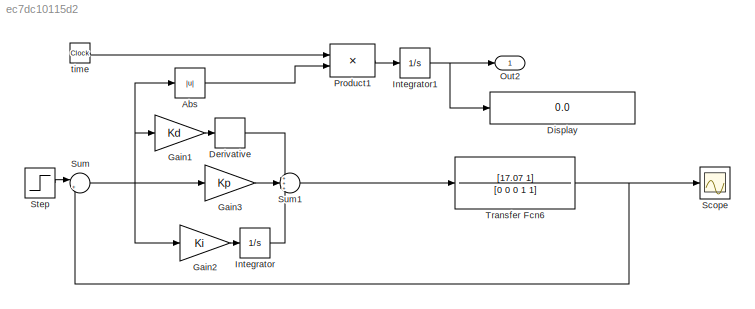
MODEL slx_ec7dc10115d2
KIND model
CONFIG AbsTol = auto
CONFIG EnableMultiTasking = on
CONFIG FixedStep = auto
CONFIG MaxStep = auto
CONFIG MinStep = auto
CONFIG RelTol = 1e-3
CONFIG SampleTimeConstraint = Unconstrained
CONFIG Solver = VariableStepAuto
CONFIG SolverName = VariableStepAuto
CONFIG StartTime = 0.0
CONFIG StopTime = 10.0
BLOCK [Abs] Abs
  ZeroCross = off
BLOCK [Derivative] Derivative
BLOCK [Display] Display
  Decimation = 1
  Format = long
  Ports = [1]
BLOCK [Gain] Gain1
  Gain = Kd
  OutDataTypeStr = Inherit: Inherit via internal rule
  ParamDataTypeStr = Inherit: Inherit via internal rule
  SaturateOnIntegerOverflow = off
BLOCK [Gain] Gain2
  Gain = Ki
  OutDataTypeStr = Inherit: Inherit via internal rule
  ParamDataTypeStr = Inherit: Inherit via internal rule
  SaturateOnIntegerOverflow = off
BLOCK [Gain] Gain3
  Gain = Kp
  OutDataTypeStr = Inherit: Inherit via internal rule
  ParamDataTypeStr = Inherit: Inherit via internal rule
  SaturateOnIntegerOverflow = off
BLOCK [Integrator] Integrator
  Ports = [1, 1]
BLOCK [Integrator] Integrator1
  Ports = [1, 1]
BLOCK [Outport] Out2
  IconDisplay = Port number
BLOCK [Product] Product1
  InputSameDT = off
  Ports = [2, 1]
  RndMeth = Floor
BLOCK [Scope] Scope
  Floating = off
  NumInputPorts = 1
  Ports = [1]
  ScopeSpecificationString = Simulink.scopes.TimeScopeBlockCfg('CurrentConfiguration', extmgr.ConfigurationSet(extmgr.Configuration('Core','General UI',true),extmgr.Configuration('Core','Source UI',true),extmgr.Configuration('Sources','WiredSimulink',true),extmgr.Configuration('Visuals','Time Domain',true,'SerializedDisplays',{struct('MinYLimReal','0.01081','MaxYLimReal','1.01529','YLabelReal','','MinYLimMag','0.01081','MaxYL...<+1364ch>
BLOCK [Step] Step
  SampleTime = 0
  Time = 0
BLOCK [Sum] Sum
  IconShape = round
  InputSameDT = off
  Inputs = |+-
  OutDataTypeStr = Inherit: Inherit via internal rule
  Ports = [2, 1]
BLOCK [Sum] Sum1
  IconShape = round
  InputSameDT = off
  Inputs = +++
  OutDataTypeStr = Inherit: Inherit via internal rule
  Ports = [3, 1]
BLOCK [TransferFcn] Transfer Fcn6
  Denominator = [0 0 0 1 1]
  Numerator = [17.07 1]
BLOCK [Clock] time
LINE Abs:1 -> Product1:2
LINE Derivative:1 -> Sum1:1
LINE Gain1:1 -> Derivative:1
LINE Gain2:1 -> Integrator:1
LINE Gain3:1 -> Sum1:2
NET Integrator1:1 -> Display:1, Out2:1
LINE Integrator:1 -> Sum1:3
LINE Product1:1 -> Integrator1:1
LINE Step:1 -> Sum:1
LINE Sum1:1 -> Transfer Fcn6:1
NET Sum:1 -> Abs:1, Gain1:1, Gain2:1, Gain3:1
NET Transfer Fcn6:1 -> Scope:1, Sum:2
LINE time:1 -> Product1:1
note: NET lines group one-source signal fan-out (src -> all destinations, sorted); 1:1 wires keep LINE
